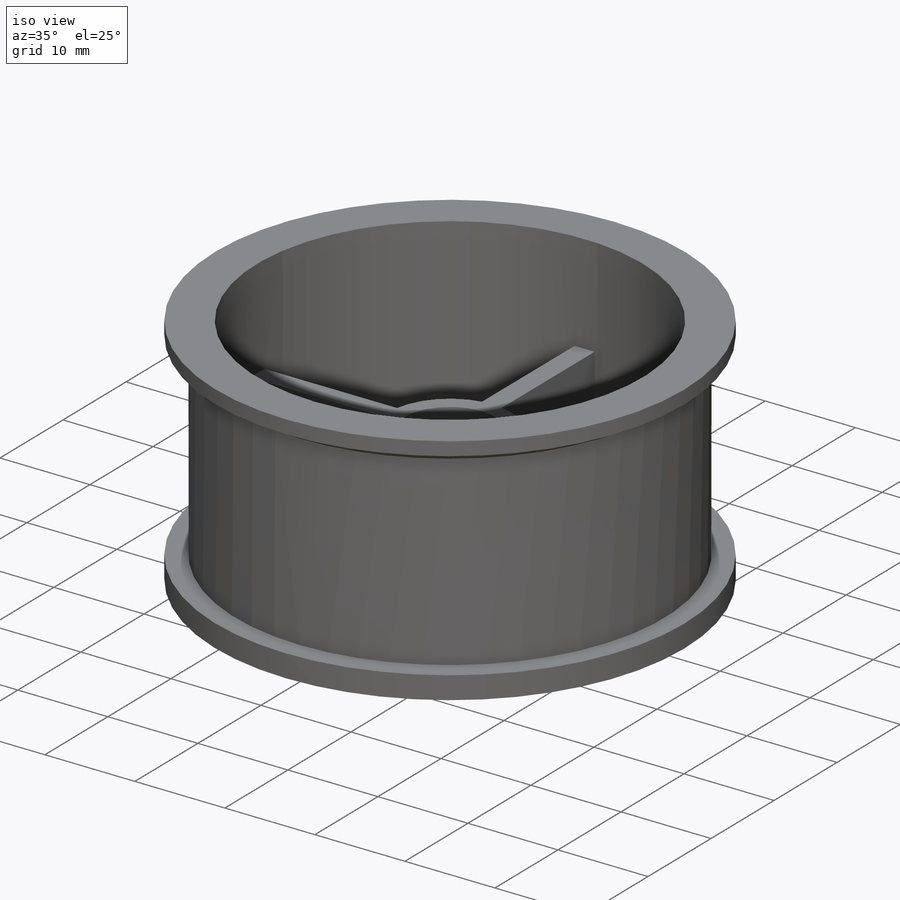
[diagram: iso view]
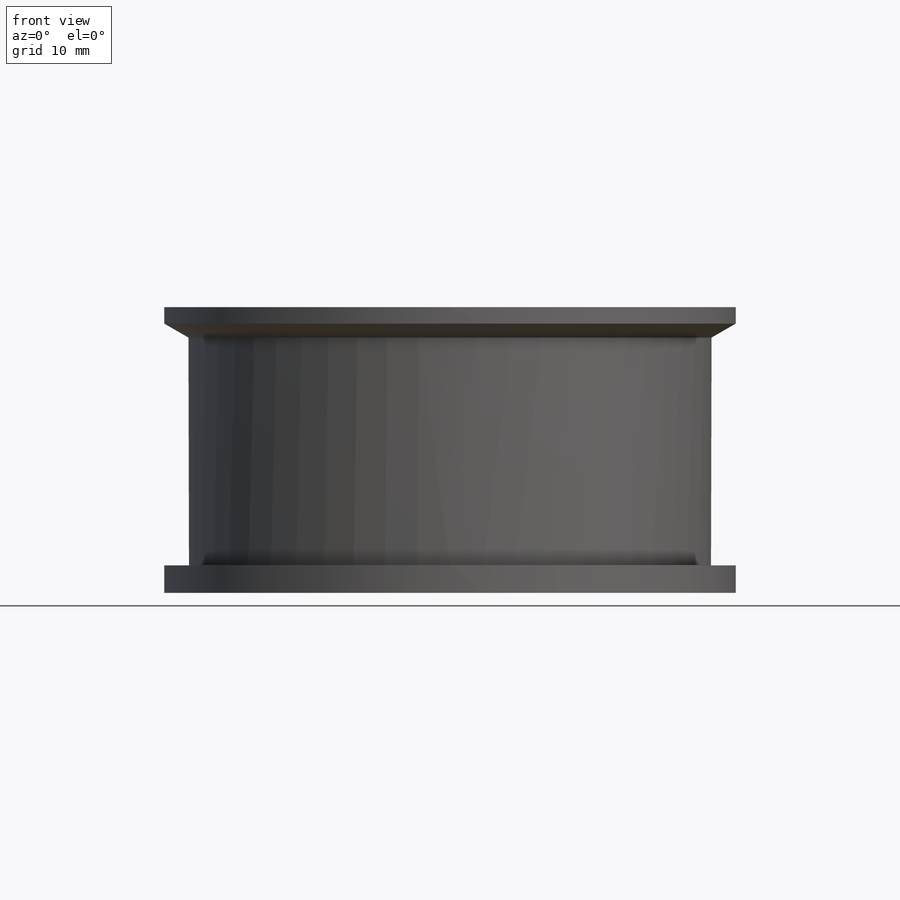
[diagram: front view]
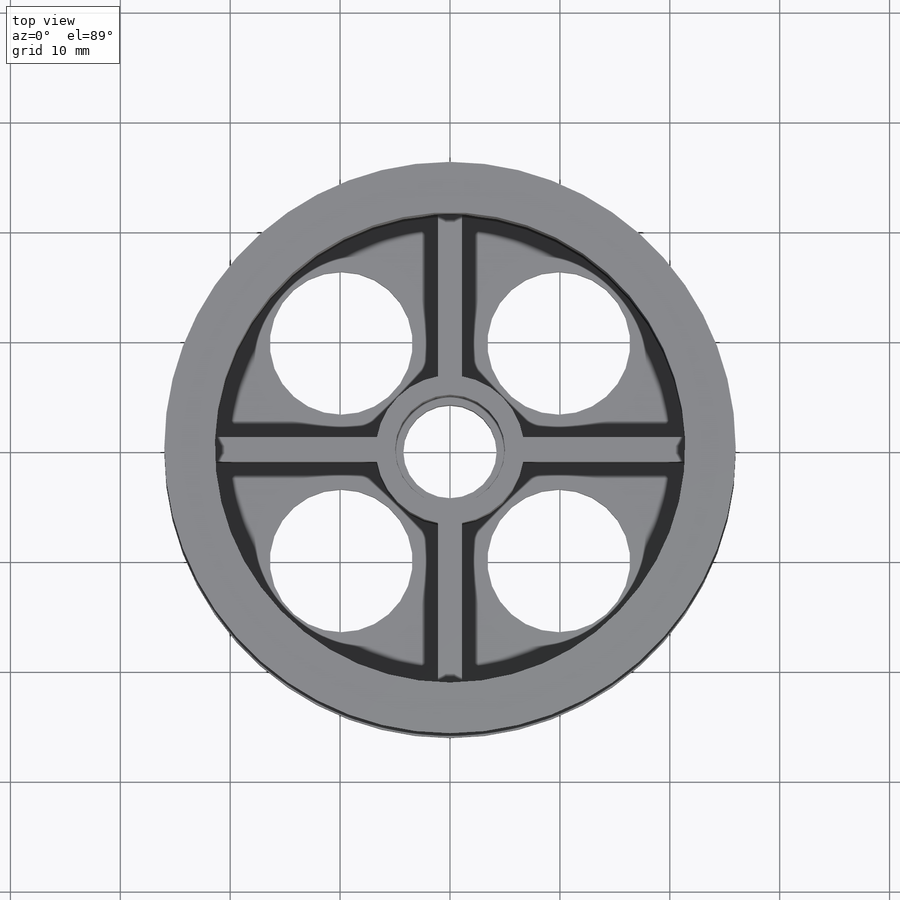
[diagram: top view]
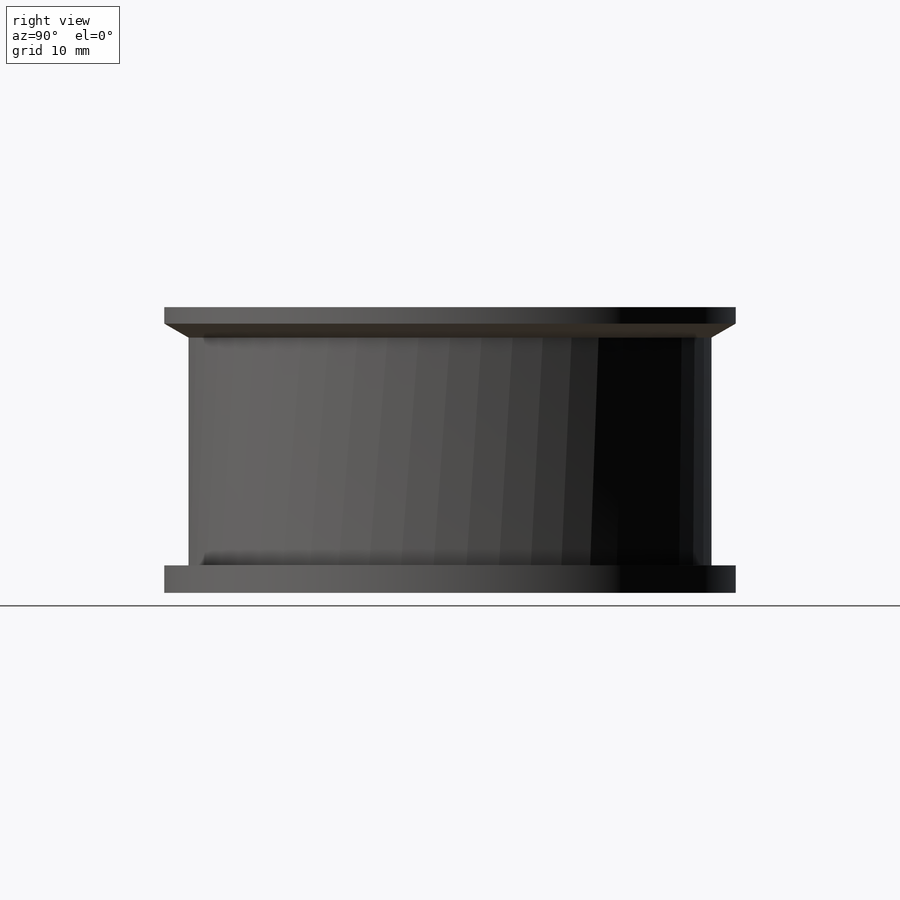
[diagram: right view]
SOLIDWORKS PART (.sldprt)
format: sldprt  version: not decoded by parser v0  size: 231,936 bytes
history: native  units: mm
features: sketch x6, cut_extrude x3, material x1, revolve x1, extrude x1 (+13 scaffold rows collapsed)
feature tree (25):
  scaffold x13  (default folders/planes/origin — collapsed)
  material  "Material <not specified>"
  sketch  "Sketch2"  dims[c1.D1=26.0mm c1.D2=2.5mm c1.D3=1.5mm c1.D4=26.0mm c1.D5=2.4mm c1.D6=2.2mm c1.D7=2.5mm c1.D8=2.2mm c2.D8=120.0deg c2.D9=4.6mm]
  revolve  "Revolve1"  Angle=360deg
  sketch  "Sketch3"  dims[D1=13.5mm]
  extrude  "Boss-Extrude1"  Depth=12.5mm
  sketch  "Sketch4"  dims[D1=10.0mm]
  cut_extrude  "Cut-Extrude1"  Depth=10mm
  sketch  "Sketch5"  dims[D1=8.5mm]
  cut_extrude  "Cut-Extrude2"  [1 undecoded]
  sketch  "Sketch8"  dims[D1=2.0mm D3=0.5deg]
  sketch  "Sketch9"  dims[c1.D1=13.0mm c1.D2=13.0mm c1.D3=13.0mm c2.D2=14.0mm c2.D4=14.0mm]
  cut_extrude  "Cut-Extrude3"  [1 undecoded]
decode coverage: 9 of 11 modeling features carry decoded parameters
note: 2 parameter values undecoded
note: suppression state not decoded; provenance and decode notes live in map.json
